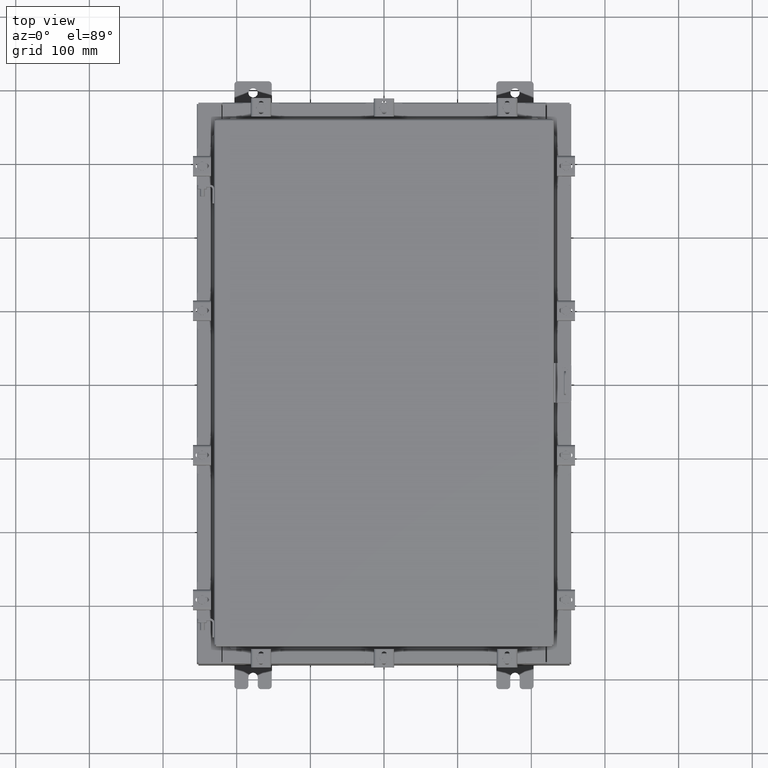
[diagram: clean part render]
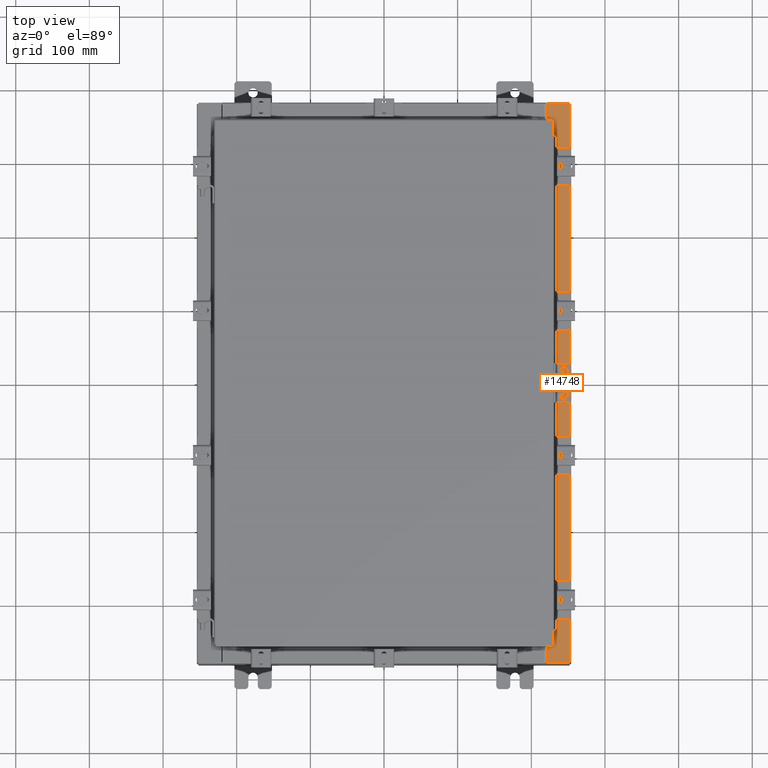
[diagram: same view with one face highlighted and labeled with its STEP entity id]
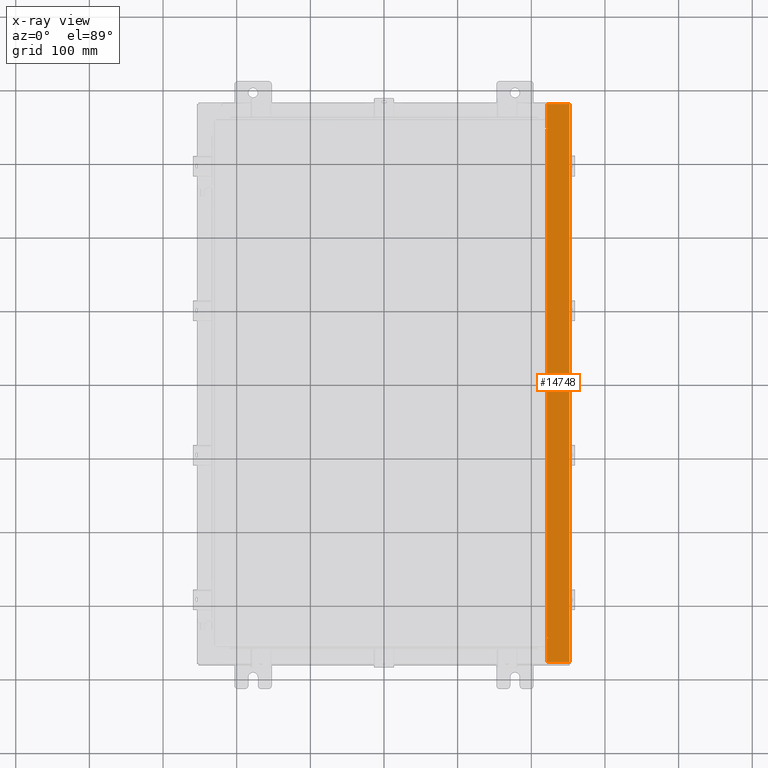
[diagram: x-ray of the same camera — body ghosted, the highlighted face saturated]
A machine part, top view. The second image highlights one B-rep face of the part: STEP entity #14748.
The next image is the same camera in x-ray: the body ghosted, the highlighted face saturated — about 0% of this face is hidden behind the body in this view.
In plain terms, the highlighted planar face has unit normal (-0, 0, -1).
Its self-contained STEP definition (entity closure, byte-faithful):
#121 = CARTESIAN_POINT ( 'NONE',  ( 8.750050000000021200, 13.63110000000000700, 5.925300000000009800 ) ) ;
#387 = VECTOR ( 'NONE', #3972, 39.37007874015748100 ) ;
#993 = DIRECTION ( 'NONE',  ( 0.0000000000000000000, -1.000000000000000000, 0.0000000000000000000 ) ) ;
#1440 = VECTOR ( 'NONE', #10839, 39.37007874015748100 ) ;
#1713 = EDGE_CURVE ( 'NONE', #10964, #5520, #5108, .T. ) ;
#2059 = LINE ( 'NONE', #2173, #20498 ) ;
#2131 = ORIENTED_EDGE ( 'NONE', *, *, #16566, .F. ) ;
#2173 = CARTESIAN_POINT ( 'NONE',  ( 8.699700000000019500, -13.63109999999999800, 5.925300000000009800 ) ) ;
#2408 = VECTOR ( 'NONE', #10798, 39.37007874015748100 ) ;
#3024 = VERTEX_POINT ( 'NONE', #17817 ) ;
#3275 = ORIENTED_EDGE ( 'NONE', *, *, #9332, .T. ) ;
#3489 = CARTESIAN_POINT ( 'NONE',  ( 8.699700000000019500, -14.92529999999999800, 5.925300000000009800 ) ) ;
#3667 = AXIS2_PLACEMENT_3D ( 'NONE', #18204, #7521, #19998 ) ;
#3859 = CARTESIAN_POINT ( 'NONE',  ( 8.699700000000019500, -13.63109999999999800, 5.925300000000009800 ) ) ;
#3972 = DIRECTION ( 'NONE',  ( -1.000000000000000000, 0.0000000000000000000, 7.132762385546378400E-015 ) ) ;
#4028 = LINE ( 'NONE', #18843, #17749 ) ;
#4110 = LINE ( 'NONE', #19846, #8332 ) ;
#4587 = EDGE_CURVE ( 'NONE', #7278, #7374, #4110, .T. ) ;
#4873 = VERTEX_POINT ( 'NONE', #121 ) ;
#4938 = FACE_OUTER_BOUND ( 'NONE', #23137, .T. ) ;
#5016 = VERTEX_POINT ( 'NONE', #16500 ) ;
#5067 = CARTESIAN_POINT ( 'NONE',  ( 6.913922522733892400E-014, -14.92530000000001400, 5.925300000000072800 ) ) ;
#5108 = LINE ( 'NONE', #11096, #387 ) ;
#5164 = ORIENTED_EDGE ( 'NONE', *, *, #16130, .F. ) ;
#5241 = ORIENTED_EDGE ( 'NONE', *, *, #10075, .F. ) ;
#5520 = VERTEX_POINT ( 'NONE', #21277 ) ;
#5528 = CARTESIAN_POINT ( 'NONE',  ( 8.750050000000021200, -13.61242500000000000, 5.925300000000009800 ) ) ;
#5772 = ORIENTED_EDGE ( 'NONE', *, *, #15690, .F. ) ;
#6282 = ORIENTED_EDGE ( 'NONE', *, *, #19352, .F. ) ;
#6578 = DIRECTION ( 'NONE',  ( -1.000000000000000000, 0.0000000000000000000, 0.0000000000000000000 ) ) ;
#7099 = CARTESIAN_POINT ( 'NONE',  ( 8.712700000000021200, -13.59375000000000000, 5.925300000000009800 ) ) ;
#7137 = ORIENTED_EDGE ( 'NONE', *, *, #8595, .F. ) ;
#7218 = VERTEX_POINT ( 'NONE', #3489 ) ;
#7235 = CARTESIAN_POINT ( 'NONE',  ( 8.712700000000021200, 13.59375000000000900, 5.925300000000009800 ) ) ;
#7278 = VERTEX_POINT ( 'NONE', #7099 ) ;
#7348 = DIRECTION ( 'NONE',  ( 1.000000000000000000, 0.0000000000000000000, 0.0000000000000000000 ) ) ;
#7374 = VERTEX_POINT ( 'NONE', #16294 ) ;
#7521 = DIRECTION ( 'NONE',  ( 7.132762385546378400E-015, 0.0000000000000000000, 1.000000000000000000 ) ) ;
#7788 = EDGE_CURVE ( 'NONE', #5016, #22311, #10116, .T. ) ;
#7964 = VECTOR ( 'NONE', #16432, 39.37007874015748100 ) ;
#8202 = PLANE ( 'NONE',  #18753 ) ;
#8332 = VECTOR ( 'NONE', #21665, 39.37007874015748100 ) ;
#8595 = EDGE_CURVE ( 'NONE', #22904, #4873, #15142, .T. ) ;
#9332 = EDGE_CURVE ( 'NONE', #14323, #7218, #16815, .T. ) ;
#9726 = ORIENTED_EDGE ( 'NONE', *, *, #4587, .F. ) ;
#9940 = CARTESIAN_POINT ( 'NONE',  ( 8.750050000000021200, 13.59375000000000900, 5.925300000000009800 ) ) ;
#9973 = DIRECTION ( 'NONE',  ( -1.000000000000000000, 0.0000000000000000000, 7.132762385546378400E-015 ) ) ;
#10075 = EDGE_CURVE ( 'NONE', #14323, #5016, #2059, .T. ) ;
#10116 = CIRCLE ( 'NONE', #20599, 0.01867499999999949400 ) ;
#10466 = DIRECTION ( 'NONE',  ( -1.000000000000000000, 0.0000000000000000000, 0.0000000000000000000 ) ) ;
#10798 = DIRECTION ( 'NONE',  ( 1.000000000000000000, 0.0000000000000000000, 0.0000000000000000000 ) ) ;
#10839 = DIRECTION ( 'NONE',  ( 0.0000000000000000000, -1.000000000000000000, 0.0000000000000000000 ) ) ;
#10941 = ORIENTED_EDGE ( 'NONE', *, *, #7788, .F. ) ;
#10964 = VERTEX_POINT ( 'NONE', #22828 ) ;
#11096 = CARTESIAN_POINT ( 'NONE',  ( 4.252457061909005100E-014, 14.92530000000000500, 5.925300000000072800 ) ) ;
#11132 = CARTESIAN_POINT ( 'NONE',  ( 9.912300000000019700, -14.92529999999999800, 5.925300000000001800 ) ) ;
#11136 = CARTESIAN_POINT ( 'NONE',  ( 8.699700000000019500, 13.63110000000000700, 5.925300000000009800 ) ) ;
#11173 = EDGE_CURVE ( 'NONE', #5520, #18905, #21013, .T. ) ;
#11351 = LINE ( 'NONE', #14073, #20880 ) ;
#12458 = LINE ( 'NONE', #7235, #2408 ) ;
#12864 = DIRECTION ( 'NONE',  ( 1.000000000000000000, 0.0000000000000000000, 0.0000000000000000000 ) ) ;
#13192 = ORIENTED_EDGE ( 'NONE', *, *, #1713, .T. ) ;
#13564 = CARTESIAN_POINT ( 'NONE',  ( 8.750050000000021200, -13.59375000000000000, 5.925300000000009800 ) ) ;
#14073 = CARTESIAN_POINT ( 'NONE',  ( 8.750050000000021200, 13.63110000000000700, 5.925300000000009800 ) ) ;
#14323 = VERTEX_POINT ( 'NONE', #3859 ) ;
#14748 = ADVANCED_FACE ( 'NONE', ( #4938 ), #8202, .F. ) ;
#15142 = CIRCLE ( 'NONE', #3667, 0.01867499999999949400 ) ;
#15331 = ORIENTED_EDGE ( 'NONE', *, *, #19676, .T. ) ;
#15690 = EDGE_CURVE ( 'NONE', #4873, #18905, #11351, .T. ) ;
#16130 = EDGE_CURVE ( 'NONE', #7374, #22904, #12458, .T. ) ;
#16252 = VECTOR ( 'NONE', #993, 39.37007874015748100 ) ;
#16294 = CARTESIAN_POINT ( 'NONE',  ( 8.712700000000021200, 13.59375000000000900, 5.925300000000009800 ) ) ;
#16432 = DIRECTION ( 'NONE',  ( -0.0000000000000000000, -1.000000000000000000, -0.0000000000000000000 ) ) ;
#16500 = CARTESIAN_POINT ( 'NONE',  ( 8.750050000000021200, -13.63109999999999800, 5.925300000000009800 ) ) ;
#16566 = EDGE_CURVE ( 'NONE', #22311, #7278, #4028, .T. ) ;
#16815 = LINE ( 'NONE', #22402, #16252 ) ;
#17602 = DIRECTION ( 'NONE',  ( 1.000000000000000000, 1.783190596386595000E-015, -7.132762385546378400E-015 ) ) ;
#17749 = VECTOR ( 'NONE', #6578, 39.37007874015748100 ) ;
#17817 = CARTESIAN_POINT ( 'NONE',  ( 9.912300000000019700, -14.92529999999999800, 5.925300000000001800 ) ) ;
#18052 = DIRECTION ( 'NONE',  ( 7.132762385546378400E-015, 0.0000000000000000000, 1.000000000000000000 ) ) ;
#18204 = CARTESIAN_POINT ( 'NONE',  ( 8.750050000000021200, 13.61242500000000900, 5.925300000000009800 ) ) ;
#18753 = AXIS2_PLACEMENT_3D ( 'NONE', #18885, #20709, #9973 ) ;
#18843 = CARTESIAN_POINT ( 'NONE',  ( 8.750050000000021200, -13.59375000000000000, 5.925300000000009800 ) ) ;
#18885 = CARTESIAN_POINT ( 'NONE',  ( 4.252457061909005100E-014, 0.0000000000000000000, 5.925300000000072800 ) ) ;
#18905 = VERTEX_POINT ( 'NONE', #11136 ) ;
#19352 = EDGE_CURVE ( 'NONE', #10964, #3024, #22220, .T. ) ;
#19676 = EDGE_CURVE ( 'NONE', #7218, #3024, #20240, .T. ) ;
#19757 = CARTESIAN_POINT ( 'NONE',  ( 8.699700000000019500, 0.0000000000000000000, 5.925300000000009800 ) ) ;
#19846 = CARTESIAN_POINT ( 'NONE',  ( 8.712700000000021200, -13.59375000000000000, 5.925300000000009800 ) ) ;
#19998 = DIRECTION ( 'NONE',  ( 1.000000000000000000, 0.0000000000000000000, 0.0000000000000000000 ) ) ;
#20240 = LINE ( 'NONE', #5067, #21937 ) ;
#20498 = VECTOR ( 'NONE', #12864, 39.37007874015748100 ) ;
#20599 = AXIS2_PLACEMENT_3D ( 'NONE', #5528, #18052, #7348 ) ;
#20709 = DIRECTION ( 'NONE',  ( -7.132762385546378400E-015, 0.0000000000000000000, -1.000000000000000000 ) ) ;
#20880 = VECTOR ( 'NONE', #10466, 39.37007874015748100 ) ;
#20979 = ORIENTED_EDGE ( 'NONE', *, *, #11173, .T. ) ;
#21013 = LINE ( 'NONE', #19757, #1440 ) ;
#21277 = CARTESIAN_POINT ( 'NONE',  ( 8.699700000000019500, 14.92530000000000700, 5.925300000000009800 ) ) ;
#21665 = DIRECTION ( 'NONE',  ( -0.0000000000000000000, 1.000000000000000000, -0.0000000000000000000 ) ) ;
#21937 = VECTOR ( 'NONE', #17602, 39.37007874015748100 ) ;
#22220 = LINE ( 'NONE', #11132, #7964 ) ;
#22311 = VERTEX_POINT ( 'NONE', #13564 ) ;
#22402 = CARTESIAN_POINT ( 'NONE',  ( 8.699700000000019500, 0.0000000000000000000, 5.925300000000009800 ) ) ;
#22828 = CARTESIAN_POINT ( 'NONE',  ( 9.912300000000019700, 14.92530000000000700, 5.925300000000001800 ) ) ;
#22904 = VERTEX_POINT ( 'NONE', #9940 ) ;
#23137 = EDGE_LOOP ( 'NONE', ( #5241, #3275, #15331, #6282, #13192, #20979, #5772, #7137, #5164, #9726, #2131, #10941 ) ) ;